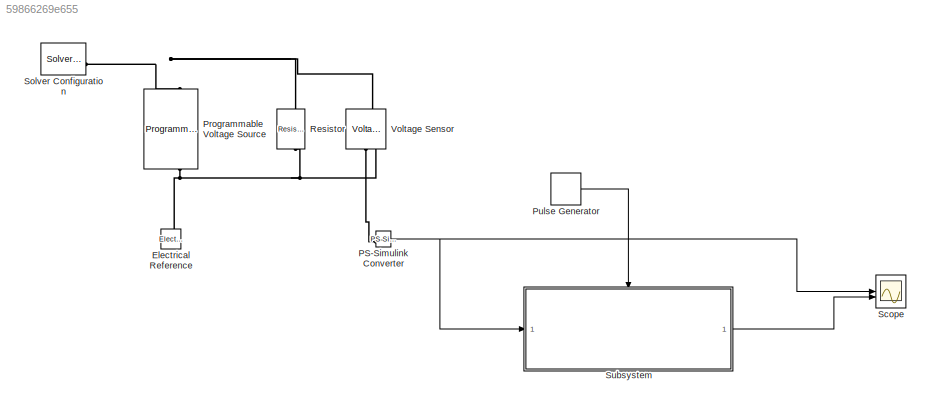
MODEL slx_59866269e655
KIND model
CONFIG AbsTol = auto
CONFIG EnableMultiTasking = off
CONFIG FixedStep = auto
CONFIG MaxStep = auto
CONFIG MinStep = auto
CONFIG RelTol = 1e-3
CONFIG SampleTimeConstraint = Unconstrained
CONFIG SolverName = VariableStepAuto
CONFIG StartTime = 0.0
CONFIG StopTime = 5
BLOCK [Reference] Electrical Reference  REF=fl_lib/Electrical/Electrical Elements/Electrical Reference
  NameLocation = right
  SourceBlock = fl_lib/Electrical/Electrical Elements/Electrical Reference
  SourceType = Electrical Reference
BLOCK [Reference] PS-Simulink Converter  REF=nesl_utility/PS-Simulink
Converter
  SourceBlock = nesl_utility/PS-Simulink\nConverter
  SourceType = PS-Simulink\nConverter
BLOCK [Reference] Programmable Voltage Source  REF=ee_lib/Sources/Programmable Voltage
Source
  NameLocation = right
  SourceBlock = ee_lib/Sources/Programmable Voltage\nSource
  SourceType = Programmable Voltage\nSource
BLOCK [DiscretePulseGenerator] Pulse Generator
  Period = 1/1000
  PulseType = Time based
BLOCK [Reference] Resistor  REF=fl_lib/Electrical/Electrical Elements/Resistor
  NameLocation = left
  SourceBlock = fl_lib/Electrical/Electrical Elements/Resistor
  SourceType = Resistor
BLOCK [Scope] Scope
  Floating = off
  NumInputPorts = 2
  ScopeSpecificationString = Simulink.scopes.TimeScopeBlockCfg('CurrentConfiguration', extmgr.ConfigurationSet(extmgr.Configuration('Core','General UI',true),extmgr.Configuration('Core','Source UI',true),extmgr.Configuration('Sources','WiredSimulink',true),extmgr.Configuration('Visuals','Time Domain',true,'SerializedDisplays',{struct('MinYLimReal','-0.625','MaxYLimReal','5.625','YLabelReal','','MinYLimMag','0.00000','MaxYLimM...<+2491ch>
BLOCK [Reference] Solver Configuration  REF=nesl_utility/Solver
Configuration
  SourceBlock = nesl_utility/Solver\nConfiguration
  SourceType = Solver\nConfiguration
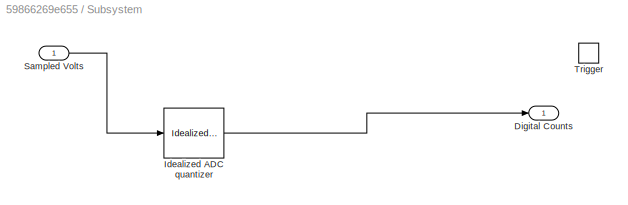
BLOCK [SubSystem] Subsystem
BLOCK [Outport] Subsystem/Digital Counts
BLOCK [Reference] Subsystem/Idealized ADC quantizer  REF=simulink_extras/Additional
Discrete/Idealized ADC quantizer
  AttributesFormatString = (settings: %<NumberOfConverterBits>-bit converter\nVmin: %<Vmin>, Vmax: %<Vmax>)
  SourceBlock = simulink_extras/Additional\nDiscrete/Idealized ADC quantizer
  SourceType = IdealADC
BLOCK [Inport] Subsystem/Sampled Volts
BLOCK [TriggerPort] Subsystem/Trigger
  PortDimensions = 1
  StatesWhenEnabling = held
  VariantControl = (inherit)
BLOCK [Reference] Voltage Sensor  REF=fl_lib/Electrical/Electrical Sensors/Voltage Sensor
  NameLocation = right
  SourceBlock = fl_lib/Electrical/Electrical Sensors/Voltage Sensor
  SourceType = Voltage Sensor
NET PS-Simulink Converter:1 -> Scope:1, Subsystem:1
LINE Pulse Generator:1 -> Subsystem:trigger
LINE Subsystem/Idealized ADC quantizer:1 -> Subsystem/Digital Counts:1
LINE Subsystem/Sampled Volts:1 -> Subsystem/Idealized ADC quantizer:1
LINE Subsystem:1 -> Scope:2
PNET net1: Electrical Reference:LConn1 -- Programmable Voltage Source:RConn1 -- Resistor:RConn1 -- Voltage Sensor:RConn2
PLINE PS-Simulink Converter:LConn1 -- Voltage Sensor:RConn1
PNET net2: Programmable Voltage Source:LConn1 -- Resistor:LConn1 -- Solver Configuration:RConn1 -- Voltage Sensor:LConn1
note: NET lines group one-source signal fan-out (src -> all destinations, sorted); 1:1 wires keep LINE; PNET lines group multi-terminal physical nets as a canonical sorted terminal list (undirected conserving connections); 2-terminal nets keep the pairwise PLINE form
